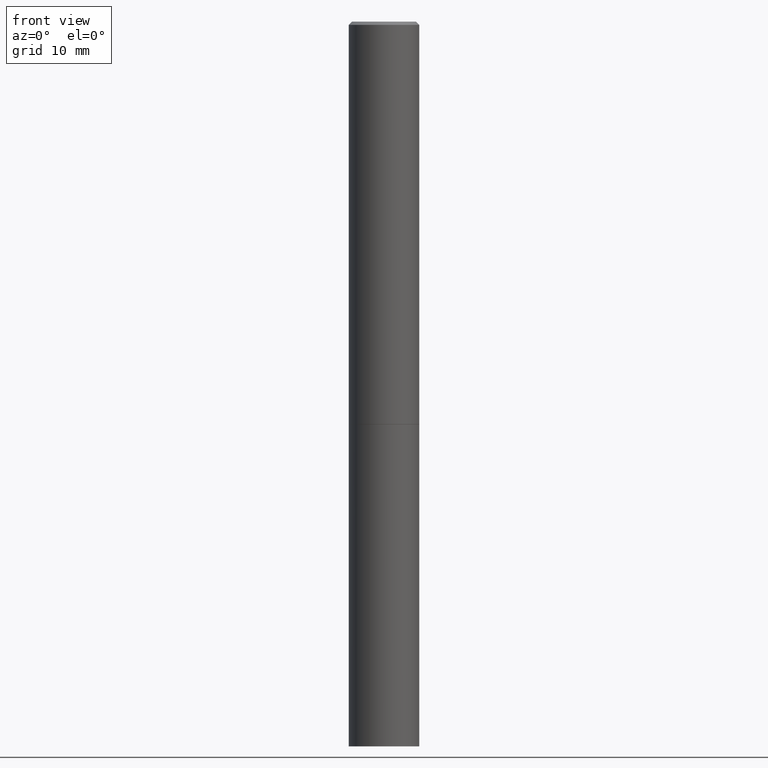
[diagram: clean part render]
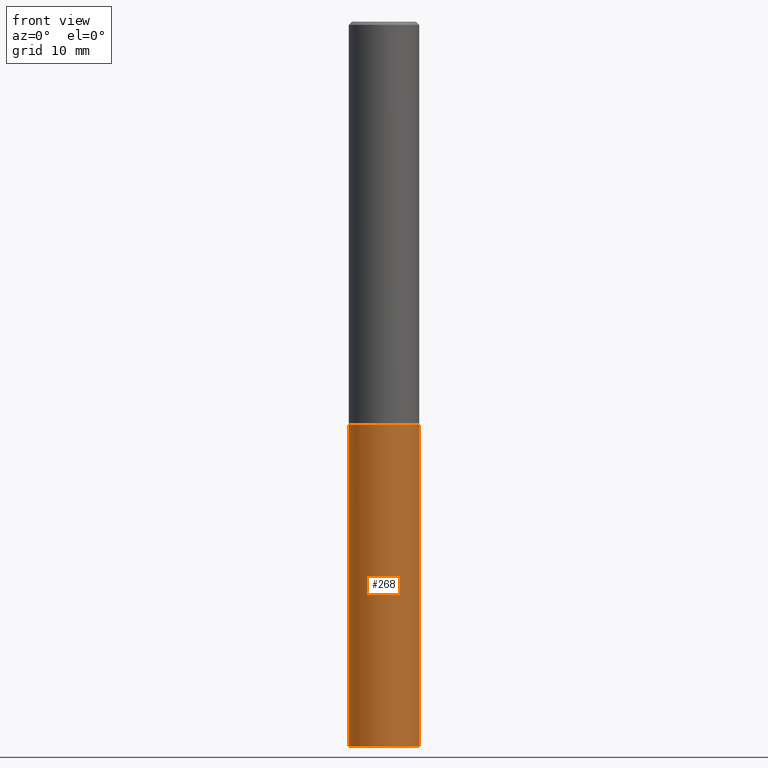
[diagram: same view with one face highlighted and labeled with its STEP entity id]
A machine part, front view. The second image highlights one B-rep face of the part: STEP entity #268.
In plain terms, the highlighted cylindrical surface (edge-blend (fillet) strip) has radius 5.5562 mm, axis along (-0, 0, 1).
Its self-contained STEP definition (entity closure, byte-faithful):
#11 = CARTESIAN_POINT ( 'NONE',  ( 1.100460962783311469E-28, -1.571166602479415690E-14, -4.500000000000000000 ) ) ;
#23 = EDGE_CURVE ( 'NONE', #125, #194, #95, .T. ) ;
#29 = EDGE_CURVE ( 'NONE', #387, #125, #221, .T. ) ;
#31 = DIRECTION ( 'NONE',  ( -2.445468806185136597E-29, 3.491481338843145583E-15, 1.000000000000000000 ) ) ;
#35 = DIRECTION ( 'NONE',  ( 1.000000000000000000, -6.982962677686266711E-15, 4.876176775795935232E-29 ) ) ;
#63 = AXIS2_PLACEMENT_3D ( 'NONE', #335, #31, #35 ) ;
#93 = ORIENTED_EDGE ( 'NONE', *, *, #264, .T. ) ;
#95 = CIRCLE ( 'NONE', #292, 0.2187500000000000000 ) ;
#96 = VECTOR ( 'NONE', #118, 39.37007874015748143 ) ;
#99 = DIRECTION ( 'NONE',  ( 1.000000000000000000, -6.982962677686267499E-15, 0.000000000000000000 ) ) ;
#105 = CARTESIAN_POINT ( 'NONE',  ( -0.2187500000000000000, 1.554312234475219157E-15, -1.076017050993260622E-29 ) ) ;
#111 = FACE_OUTER_BOUND ( 'NONE', #375, .T. ) ;
#113 = CARTESIAN_POINT ( 'NONE',  ( -0.2187500000000003331, -1.418414293905028211E-14, -4.500000000000000000 ) ) ;
#118 = DIRECTION ( 'NONE',  ( -2.445468806185136877E-29, 3.491481338843145188E-15, 1.000000000000000000 ) ) ;
#125 = VERTEX_POINT ( 'NONE', #320 ) ;
#129 = DIRECTION ( 'NONE',  ( -2.445468806185136597E-29, 3.491481338843145583E-15, 1.000000000000000000 ) ) ;
#157 = CIRCLE ( 'NONE', #377, 0.2187500000000000000 ) ;
#172 = CARTESIAN_POINT ( 'NONE',  ( 0.2187500000000000000, -1.025622643285173500E-14, -2.500000000000000000 ) ) ;
#175 = CARTESIAN_POINT ( 'NONE',  ( 0.2187500000000003331, -1.721239996180668100E-14, -4.500000000000000000 ) ) ;
#194 = VERTEX_POINT ( 'NONE', #172 ) ;
#216 = ORIENTED_EDGE ( 'NONE', *, *, #336, .T. ) ;
#221 = LINE ( 'NONE', #105, #386 ) ;
#227 = DIRECTION ( 'NONE',  ( -2.445468806185136877E-29, 3.491481338843145188E-15, 1.000000000000000000 ) ) ;
#232 = ORIENTED_EDGE ( 'NONE', *, *, #23, .F. ) ;
#252 = DIRECTION ( 'NONE',  ( 1.000000000000000000, -6.982962677686262766E-15, 0.000000000000000000 ) ) ;
#264 = EDGE_CURVE ( 'NONE', #387, #383, #157, .T. ) ;
#268 = ADVANCED_FACE ( 'NONE', ( #111 ), #333, .T. ) ;
#292 = AXIS2_PLACEMENT_3D ( 'NONE', #348, #381, #99 ) ;
#304 = CARTESIAN_POINT ( 'NONE',  ( 0.2187500000000000000, -1.527523085743870843E-15, 1.066663669705360885E-29 ) ) ;
#307 = LINE ( 'NONE', #304, #96 ) ;
#315 = ORIENTED_EDGE ( 'NONE', *, *, #29, .F. ) ;
#320 = CARTESIAN_POINT ( 'NONE',  ( -0.2187500000000000000, -1.066587245147579176E-14, -2.500000000000000000 ) ) ;
#333 = CYLINDRICAL_SURFACE ( 'NONE', #63, 0.2187500000000000000 ) ;
#335 = CARTESIAN_POINT ( 'NONE',  ( 0.000000000000000000, 0.000000000000000000, 0.000000000000000000 ) ) ;
#336 = EDGE_CURVE ( 'NONE', #383, #194, #307, .T. ) ;
#348 = CARTESIAN_POINT ( 'NONE',  ( 6.113672015462842613E-29, -8.728703347107864943E-15, -2.500000000000000000 ) ) ;
#375 = EDGE_LOOP ( 'NONE', ( #315, #93, #216, #232 ) ) ;
#377 = AXIS2_PLACEMENT_3D ( 'NONE', #11, #129, #252 ) ;
#381 = DIRECTION ( 'NONE',  ( -2.445468806185136597E-29, 3.491481338843145583E-15, 1.000000000000000000 ) ) ;
#383 = VERTEX_POINT ( 'NONE', #175 ) ;
#386 = VECTOR ( 'NONE', #227, 39.37007874015748143 ) ;
#387 = VERTEX_POINT ( 'NONE', #113 ) ;